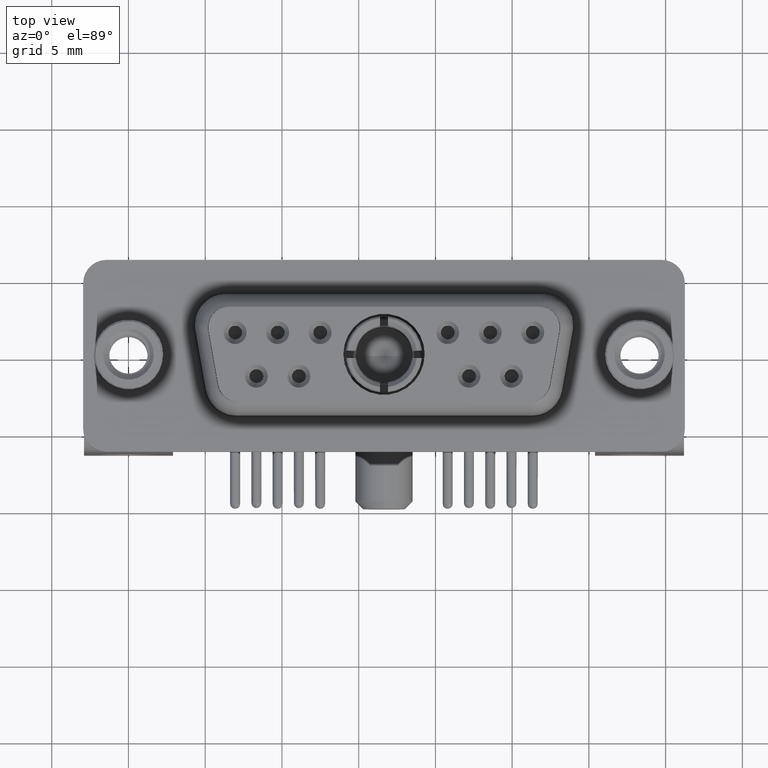
[diagram: clean part render]
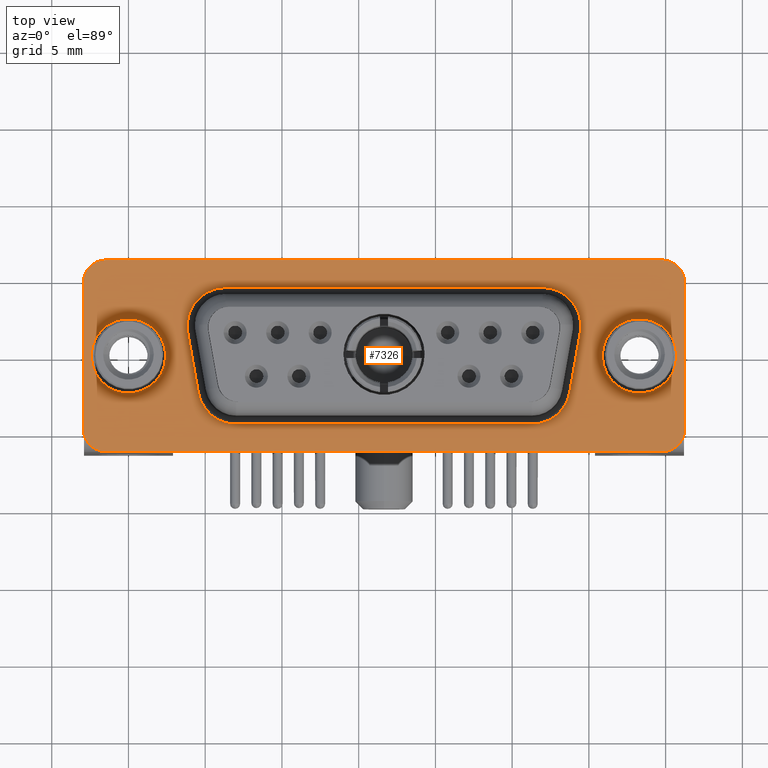
[diagram: same view with one face highlighted and labeled with its STEP entity id]
A machine part, top view. The second image highlights one B-rep face of the part: STEP entity #7326.
In plain terms, the highlighted planar face has unit normal (0, 0, 1).
Its self-contained STEP definition (entity closure, byte-faithful):
#290 = ORIENTED_EDGE ( 'NONE', *, *, #2839, .T. ) ;
#364 = ORIENTED_EDGE ( 'NONE', *, *, #11505, .T. ) ;
#391 = CARTESIAN_POINT ( 'NONE',  ( -1.450000000000006839, -4.750000000000005329, 0.4000000000000000222 ) ) ;
#450 = VERTEX_POINT ( 'NONE', #1908 ) ;
#585 = DIRECTION ( 'NONE',  ( -1.000000000000000000, -0.0000000000000000000, -0.0000000000000000000 ) ) ;
#616 = ORIENTED_EDGE ( 'NONE', *, *, #9568, .T. ) ;
#723 = DIRECTION ( 'NONE',  ( -0.1736481776669236976, 0.9848077530122092416, -0.0000000000000000000 ) ) ;
#761 = CIRCLE ( 'NONE', #11413, 1.500000000000001332 ) ;
#842 = LINE ( 'NONE', #6095, #10265 ) ;
#887 = DIRECTION ( 'NONE',  ( 0.0000000000000000000, 0.0000000000000000000, 1.000000000000000000 ) ) ;
#977 = VERTEX_POINT ( 'NONE', #9911 ) ;
#992 = DIRECTION ( 'NONE',  ( -0.0000000000000000000, -0.0000000000000000000, -1.000000000000000000 ) ) ;
#1055 = CARTESIAN_POINT ( 'NONE',  ( -1.450000000000006617, -6.250000000000005329, 0.4000000000000000222 ) ) ;
#1110 = DIRECTION ( 'NONE',  ( 0.0000000000000000000, 0.0000000000000000000, 1.000000000000000000 ) ) ;
#1305 = DIRECTION ( 'NONE',  ( 1.000000000000000000, 0.0000000000000000000, 0.0000000000000000000 ) ) ;
#1322 = AXIS2_PLACEMENT_3D ( 'NONE', #3207, #12874, #19795 ) ;
#1401 = ORIENTED_EDGE ( 'NONE', *, *, #5639, .F. ) ;
#1429 = DIRECTION ( 'NONE',  ( 1.000000000000000000, 0.0000000000000000000, 0.0000000000000000000 ) ) ;
#1504 = CARTESIAN_POINT ( 'NONE',  ( -1.450000000000006839, 4.749999999999996447, 0.4000000000000000222 ) ) ;
#1692 = ORIENTED_EDGE ( 'NONE', *, *, #7434, .T. ) ;
#1715 = DIRECTION ( 'NONE',  ( -0.0000000000000000000, -1.000000000000000000, -0.0000000000000000000 ) ) ;
#1719 = EDGE_CURVE ( 'NONE', #14747, #5878, #842, .T. ) ;
#1734 = EDGE_CURVE ( 'NONE', #17044, #5433, #16745, .T. ) ;
#1906 = EDGE_CURVE ( 'NONE', #8432, #12600, #4404, .T. ) ;
#1908 = CARTESIAN_POINT ( 'NONE',  ( 6.324999999999998401, 4.449999999999995737, 0.4000000000000000222 ) ) ;
#2008 = DIRECTION ( 'NONE',  ( -1.000000000000000000, 0.0000000000000000000, 0.0000000000000000000 ) ) ;
#2159 = CARTESIAN_POINT ( 'NONE',  ( 36.25000000000000711, -4.750000000000000888, 0.4000000000000000222 ) ) ;
#2195 = EDGE_CURVE ( 'NONE', #17854, #12808, #15738, .T. ) ;
#2220 = EDGE_CURVE ( 'NONE', #12808, #17854, #14028, .T. ) ;
#2472 = AXIS2_PLACEMENT_3D ( 'NONE', #14043, #20543, #20862 ) ;
#2619 = CARTESIAN_POINT ( 'NONE',  ( 26.28732477523701050, -1.950000000000005507, 0.3999999999999999667 ) ) ;
#2708 = CIRCLE ( 'NONE', #17430, 2.499999999999999556 ) ;
#2786 = DIRECTION ( 'NONE',  ( -0.0000000000000000000, -0.0000000000000000000, -1.000000000000000000 ) ) ;
#2822 = DIRECTION ( 'NONE',  ( 0.0000000000000000000, 0.0000000000000000000, 1.000000000000000000 ) ) ;
#2839 = EDGE_CURVE ( 'NONE', #18205, #18318, #16216, .T. ) ;
#3094 = VERTEX_POINT ( 'NONE', #1055 ) ;
#3207 = CARTESIAN_POINT ( 'NONE',  ( 7.012675224762984882, -1.950000000000005507, 0.3999999999999999667 ) ) ;
#3396 = AXIS2_PLACEMENT_3D ( 'NONE', #9705, #1110, #1429 ) ;
#3457 = CIRCLE ( 'NONE', #6185, 1.500000000000001332 ) ;
#3735 = AXIS2_PLACEMENT_3D ( 'NONE', #12930, #6258, #11005 ) ;
#4029 = LINE ( 'NONE', #8756, #9065 ) ;
#4114 = CARTESIAN_POINT ( 'NONE',  ( 29.47499999999999787, 1.949999999999995071, 0.3999999999999998557 ) ) ;
#4172 = EDGE_CURVE ( 'NONE', #5433, #6540, #9656, .T. ) ;
#4175 = CARTESIAN_POINT ( 'NONE',  ( -2.950000000000005951, -4.750000000000005329, 0.4000000000000000222 ) ) ;
#4372 = VERTEX_POINT ( 'NONE', #12336 ) ;
#4404 = CIRCLE ( 'NONE', #1322, 2.499999999999999556 ) ;
#4761 = VERTEX_POINT ( 'NONE', #2159 ) ;
#4940 = ORIENTED_EDGE ( 'NONE', *, *, #13520, .F. ) ;
#5014 = DIRECTION ( 'NONE',  ( 0.0000000000000000000, 1.000000000000000000, 0.0000000000000000000 ) ) ;
#5209 = AXIS2_PLACEMENT_3D ( 'NONE', #2619, #992, #10895 ) ;
#5433 = VERTEX_POINT ( 'NONE', #9215 ) ;
#5639 = EDGE_CURVE ( 'NONE', #8600, #18369, #15503, .T. ) ;
#5785 = DIRECTION ( 'NONE',  ( -1.000000000000000000, -1.677218830364315767E-16, 0.0000000000000000000 ) ) ;
#5878 = VERTEX_POINT ( 'NONE', #17118 ) ;
#6004 = CARTESIAN_POINT ( 'NONE',  ( 30.15029251988120151, 5.561052532111456337, 0.4000000000000000222 ) ) ;
#6095 = CARTESIAN_POINT ( 'NONE',  ( 34.75000000000000000, 6.250000000000000888, 0.4000000000000000222 ) ) ;
#6185 = AXIS2_PLACEMENT_3D ( 'NONE', #18378, #887, #11869 ) ;
#6258 = DIRECTION ( 'NONE',  ( 0.0000000000000000000, 0.0000000000000000000, 1.000000000000000000 ) ) ;
#6259 = ORIENTED_EDGE ( 'NONE', *, *, #1906, .T. ) ;
#6540 = VERTEX_POINT ( 'NONE', #11103 ) ;
#6964 = ORIENTED_EDGE ( 'NONE', *, *, #18874, .T. ) ;
#7198 = EDGE_CURVE ( 'NONE', #4761, #16905, #19579, .T. ) ;
#7326 = ADVANCED_FACE ( 'NONE', ( #10505, #13716, #17226, #12003 ), #8984, .T. ) ;
#7355 = EDGE_CURVE ( 'NONE', #13643, #17044, #10728, .T. ) ;
#7434 = EDGE_CURVE ( 'NONE', #16905, #14747, #761, .T. ) ;
#7723 = ORIENTED_EDGE ( 'NONE', *, *, #2195, .F. ) ;
#7893 = DIRECTION ( 'NONE',  ( 0.0000000000000000000, 0.0000000000000000000, 1.000000000000000000 ) ) ;
#8120 = CARTESIAN_POINT ( 'NONE',  ( 36.25000000000000711, -4.750000000000000888, 0.4000000000000000222 ) ) ;
#8432 = VERTEX_POINT ( 'NONE', #14596 ) ;
#8552 = EDGE_LOOP ( 'NONE', ( #1692, #11868, #6964, #290, #11070, #16519, #10287, #10030 ) ) ;
#8600 = VERTEX_POINT ( 'NONE', #15626 ) ;
#8695 = AXIS2_PLACEMENT_3D ( 'NONE', #1504, #14606, #11083 ) ;
#8756 = CARTESIAN_POINT ( 'NONE',  ( 34.75000000000000000, -4.450000000000006395, 0.4000000000000000222 ) ) ;
#8772 = CARTESIAN_POINT ( 'NONE',  ( 35.72499999999999432, 6.117110761741028223E-15, 0.4000000000000000222 ) ) ;
#8984 = PLANE ( 'NONE',  #14817 ) ;
#9065 = VECTOR ( 'NONE', #585, 1000.000000000000000 ) ;
#9215 = CARTESIAN_POINT ( 'NONE',  ( 29.43701938253052219, 1.515879555832686298, 0.4000000000000000222 ) ) ;
#9546 = ORIENTED_EDGE ( 'NONE', *, *, #14240, .T. ) ;
#9568 = EDGE_CURVE ( 'NONE', #450, #13643, #12369, .T. ) ;
#9656 = LINE ( 'NONE', #6004, #16820 ) ;
#9705 = CARTESIAN_POINT ( 'NONE',  ( 33.29999999999999716, 6.117110761741028223E-15, 0.4000000000000000222 ) ) ;
#9911 = CARTESIAN_POINT ( 'NONE',  ( 34.75000000000000000, -6.250000000000001776, 0.4000000000000000222 ) ) ;
#9924 = CARTESIAN_POINT ( 'NONE',  ( 26.28732477523701050, -4.450000000000006395, 0.4000000000000000222 ) ) ;
#10030 = ORIENTED_EDGE ( 'NONE', *, *, #7198, .T. ) ;
#10061 = CARTESIAN_POINT ( 'NONE',  ( 34.75000000000000000, -6.250000000000000888, 0.4000000000000000222 ) ) ;
#10250 = DIRECTION ( 'NONE',  ( -0.0000000000000000000, -0.0000000000000000000, -1.000000000000000000 ) ) ;
#10265 = VECTOR ( 'NONE', #5785, 1000.000000000000000 ) ;
#10287 = ORIENTED_EDGE ( 'NONE', *, *, #14650, .T. ) ;
#10291 = DIRECTION ( 'NONE',  ( 1.000000000000000000, 0.0000000000000000000, 0.0000000000000000000 ) ) ;
#10406 = DIRECTION ( 'NONE',  ( 0.0000000000000000000, 0.0000000000000000000, 1.000000000000000000 ) ) ;
#10409 = EDGE_LOOP ( 'NONE', ( #616, #19422, #18256, #16304, #10421, #364, #6259, #9546, #10464 ) ) ;
#10421 = ORIENTED_EDGE ( 'NONE', *, *, #17113, .T. ) ;
#10464 = ORIENTED_EDGE ( 'NONE', *, *, #11999, .T. ) ;
#10505 = FACE_BOUND ( 'NONE', #12917, .T. ) ;
#10548 = ORIENTED_EDGE ( 'NONE', *, *, #2220, .F. ) ;
#10563 = EDGE_LOOP ( 'NONE', ( #7723, #10548 ) ) ;
#10728 = CIRCLE ( 'NONE', #12449, 2.499999999999998668 ) ;
#10837 = AXIS2_PLACEMENT_3D ( 'NONE', #391, #10406, #2008 ) ;
#10846 = CARTESIAN_POINT ( 'NONE',  ( 26.97499999999999787, 1.949999999999995071, 0.3999999999999999667 ) ) ;
#10895 = DIRECTION ( 'NONE',  ( 1.000000000000000000, 8.673617379884027583E-16, 0.0000000000000000000 ) ) ;
#10950 = DIRECTION ( 'NONE',  ( 1.000000000000000000, 0.0000000000000000000, 0.0000000000000000000 ) ) ;
#11005 = DIRECTION ( 'NONE',  ( 1.000000000000000000, 0.0000000000000000000, 0.0000000000000000000 ) ) ;
#11025 = CARTESIAN_POINT ( 'NONE',  ( 34.75000000000000000, 4.750000000000000888, 0.4000000000000000222 ) ) ;
#11070 = ORIENTED_EDGE ( 'NONE', *, *, #20855, .T. ) ;
#11083 = DIRECTION ( 'NONE',  ( 1.000000000000000000, 0.0000000000000000000, 0.0000000000000000000 ) ) ;
#11103 = CARTESIAN_POINT ( 'NONE',  ( 28.74934415776753482, -2.384120444167313391, 0.4000000000000000222 ) ) ;
#11364 = EDGE_CURVE ( 'NONE', #3094, #977, #14765, .T. ) ;
#11413 = AXIS2_PLACEMENT_3D ( 'NONE', #11025, #7893, #17655 ) ;
#11505 = EDGE_CURVE ( 'NONE', #13265, #8432, #4029, .T. ) ;
#11587 = VECTOR ( 'NONE', #14983, 1000.000000000000000 ) ;
#11868 = ORIENTED_EDGE ( 'NONE', *, *, #1719, .T. ) ;
#11869 = DIRECTION ( 'NONE',  ( 1.000000000000000000, 0.0000000000000000000, 0.0000000000000000000 ) ) ;
#11900 = CARTESIAN_POINT ( 'NONE',  ( 26.97499999999999787, 1.949999999999995071, 0.3999999999999999667 ) ) ;
#11999 = EDGE_CURVE ( 'NONE', #4372, #450, #2708, .T. ) ;
#12003 = FACE_OUTER_BOUND ( 'NONE', #8552, .T. ) ;
#12073 = CARTESIAN_POINT ( 'NONE',  ( 6.324999999999998401, 1.949999999999995071, 0.3999999999999999667 ) ) ;
#12336 = CARTESIAN_POINT ( 'NONE',  ( 3.862980617469474964, 1.515879555832686298, 0.4000000000000000222 ) ) ;
#12369 = LINE ( 'NONE', #17386, #13590 ) ;
#12449 = AXIS2_PLACEMENT_3D ( 'NONE', #11900, #18821, #10291 ) ;
#12560 = CIRCLE ( 'NONE', #10837, 1.499999999999999112 ) ;
#12600 = VERTEX_POINT ( 'NONE', #12650 ) ;
#12650 = CARTESIAN_POINT ( 'NONE',  ( 4.550655842232461445, -2.384120444167313835, 0.4000000000000000222 ) ) ;
#12808 = VERTEX_POINT ( 'NONE', #13182 ) ;
#12838 = CARTESIAN_POINT ( 'NONE',  ( 4.241271043893765302, -0.6295120620829183222, 0.4000000000000000222 ) ) ;
#12874 = DIRECTION ( 'NONE',  ( -0.0000000000000000000, -0.0000000000000000000, -1.000000000000000000 ) ) ;
#12917 = EDGE_LOOP ( 'NONE', ( #1401, #4940 ) ) ;
#12930 = CARTESIAN_POINT ( 'NONE',  ( 33.29999999999999716, 6.117110761741028223E-15, 0.4000000000000000222 ) ) ;
#13182 = CARTESIAN_POINT ( 'NONE',  ( 30.87499999999999645, 6.414087610534261273E-15, 0.4000000000000000222 ) ) ;
#13265 = VERTEX_POINT ( 'NONE', #9924 ) ;
#13415 = LINE ( 'NONE', #12838, #16819 ) ;
#13520 = EDGE_CURVE ( 'NONE', #18369, #8600, #15767, .T. ) ;
#13590 = VECTOR ( 'NONE', #13870, 1000.000000000000000 ) ;
#13643 = VERTEX_POINT ( 'NONE', #16222 ) ;
#13716 = FACE_BOUND ( 'NONE', #10563, .T. ) ;
#13793 = CIRCLE ( 'NONE', #5209, 2.500000000000002220 ) ;
#13870 = DIRECTION ( 'NONE',  ( 1.000000000000000000, -0.0000000000000000000, -0.0000000000000000000 ) ) ;
#14028 = CIRCLE ( 'NONE', #3735, 2.424999999999996714 ) ;
#14043 = CARTESIAN_POINT ( 'NONE',  ( 0.0000000000000000000, 0.0000000000000000000, 0.4000000000000000222 ) ) ;
#14153 = VECTOR ( 'NONE', #5014, 1000.000000000000000 ) ;
#14240 = EDGE_CURVE ( 'NONE', #12600, #4372, #13415, .T. ) ;
#14352 = AXIS2_PLACEMENT_3D ( 'NONE', #10846, #2786, #10950 ) ;
#14596 = CARTESIAN_POINT ( 'NONE',  ( 7.012675224762984882, -4.450000000000006395, 0.4000000000000000222 ) ) ;
#14606 = DIRECTION ( 'NONE',  ( 0.0000000000000000000, 0.0000000000000000000, 1.000000000000000000 ) ) ;
#14632 = CARTESIAN_POINT ( 'NONE',  ( -2.425000000000000266, 2.969768487932331484E-16, 0.4000000000000000222 ) ) ;
#14650 = EDGE_CURVE ( 'NONE', #977, #4761, #3457, .T. ) ;
#14747 = VERTEX_POINT ( 'NONE', #17408 ) ;
#14765 = LINE ( 'NONE', #10061, #11587 ) ;
#14817 = AXIS2_PLACEMENT_3D ( 'NONE', #18615, #17120, #20011 ) ;
#14983 = DIRECTION ( 'NONE',  ( 1.000000000000000000, 1.198013450260225477E-16, -0.0000000000000000000 ) ) ;
#15503 = CIRCLE ( 'NONE', #2472, 2.425000000000000266 ) ;
#15626 = CARTESIAN_POINT ( 'NONE',  ( 2.425000000000000266, 0.0000000000000000000, 0.4000000000000000222 ) ) ;
#15738 = CIRCLE ( 'NONE', #3396, 2.424999999999996714 ) ;
#15767 = CIRCLE ( 'NONE', #17799, 2.425000000000000266 ) ;
#15769 = DIRECTION ( 'NONE',  ( -0.1736481776669233090, -0.9848077530122093526, 0.0000000000000000000 ) ) ;
#16216 = LINE ( 'NONE', #16637, #18123 ) ;
#16222 = CARTESIAN_POINT ( 'NONE',  ( 26.97499999999999787, 4.449999999999995737, 0.4000000000000000222 ) ) ;
#16226 = CIRCLE ( 'NONE', #8695, 1.499999999999998224 ) ;
#16262 = CARTESIAN_POINT ( 'NONE',  ( 36.25000000000000711, 4.750000000000000888, 0.4000000000000000222 ) ) ;
#16304 = ORIENTED_EDGE ( 'NONE', *, *, #4172, .T. ) ;
#16519 = ORIENTED_EDGE ( 'NONE', *, *, #11364, .T. ) ;
#16637 = CARTESIAN_POINT ( 'NONE',  ( -2.950000000000004619, -4.750000000000005329, 0.4000000000000000222 ) ) ;
#16745 = CIRCLE ( 'NONE', #14352, 2.499999999999998668 ) ;
#16819 = VECTOR ( 'NONE', #723, 1000.000000000000114 ) ;
#16820 = VECTOR ( 'NONE', #15769, 999.9999999999998863 ) ;
#16905 = VERTEX_POINT ( 'NONE', #16262 ) ;
#17044 = VERTEX_POINT ( 'NONE', #4114 ) ;
#17113 = EDGE_CURVE ( 'NONE', #6540, #13265, #13793, .T. ) ;
#17118 = CARTESIAN_POINT ( 'NONE',  ( -1.450000000000007061, 6.249999999999995559, 0.4000000000000000222 ) ) ;
#17120 = DIRECTION ( 'NONE',  ( 0.0000000000000000000, 0.0000000000000000000, 1.000000000000000000 ) ) ;
#17226 = FACE_BOUND ( 'NONE', #10409, .T. ) ;
#17294 = CARTESIAN_POINT ( 'NONE',  ( 0.0000000000000000000, 0.0000000000000000000, 0.4000000000000000222 ) ) ;
#17386 = CARTESIAN_POINT ( 'NONE',  ( 34.75000000000000000, 4.449999999999995737, 0.4000000000000000222 ) ) ;
#17408 = CARTESIAN_POINT ( 'NONE',  ( 34.75000000000000000, 6.250000000000000888, 0.4000000000000000222 ) ) ;
#17430 = AXIS2_PLACEMENT_3D ( 'NONE', #12073, #10250, #18575 ) ;
#17655 = DIRECTION ( 'NONE',  ( 1.000000000000000000, 0.0000000000000000000, 0.0000000000000000000 ) ) ;
#17799 = AXIS2_PLACEMENT_3D ( 'NONE', #17294, #2822, #1305 ) ;
#17854 = VERTEX_POINT ( 'NONE', #8772 ) ;
#18123 = VECTOR ( 'NONE', #1715, 1000.000000000000000 ) ;
#18205 = VERTEX_POINT ( 'NONE', #20452 ) ;
#18256 = ORIENTED_EDGE ( 'NONE', *, *, #1734, .T. ) ;
#18318 = VERTEX_POINT ( 'NONE', #4175 ) ;
#18369 = VERTEX_POINT ( 'NONE', #14632 ) ;
#18378 = CARTESIAN_POINT ( 'NONE',  ( 34.75000000000000000, -4.750000000000000888, 0.4000000000000000222 ) ) ;
#18575 = DIRECTION ( 'NONE',  ( 1.000000000000000000, 1.734723475976807489E-15, 0.0000000000000000000 ) ) ;
#18615 = CARTESIAN_POINT ( 'NONE',  ( 34.75000000000000000, 4.750000000000000888, 0.4000000000000000222 ) ) ;
#18821 = DIRECTION ( 'NONE',  ( -0.0000000000000000000, -0.0000000000000000000, -1.000000000000000000 ) ) ;
#18874 = EDGE_CURVE ( 'NONE', #5878, #18205, #16226, .T. ) ;
#19422 = ORIENTED_EDGE ( 'NONE', *, *, #7355, .T. ) ;
#19579 = LINE ( 'NONE', #8120, #14153 ) ;
#19795 = DIRECTION ( 'NONE',  ( 1.000000000000000000, 0.0000000000000000000, 0.0000000000000000000 ) ) ;
#20011 = DIRECTION ( 'NONE',  ( 1.000000000000000000, 0.0000000000000000000, -0.0000000000000000000 ) ) ;
#20452 = CARTESIAN_POINT ( 'NONE',  ( -2.950000000000004619, 4.749999999999996447, 0.4000000000000000222 ) ) ;
#20543 = DIRECTION ( 'NONE',  ( 0.0000000000000000000, 0.0000000000000000000, 1.000000000000000000 ) ) ;
#20855 = EDGE_CURVE ( 'NONE', #18318, #3094, #12560, .T. ) ;
#20862 = DIRECTION ( 'NONE',  ( 1.000000000000000000, 0.0000000000000000000, 0.0000000000000000000 ) ) ;